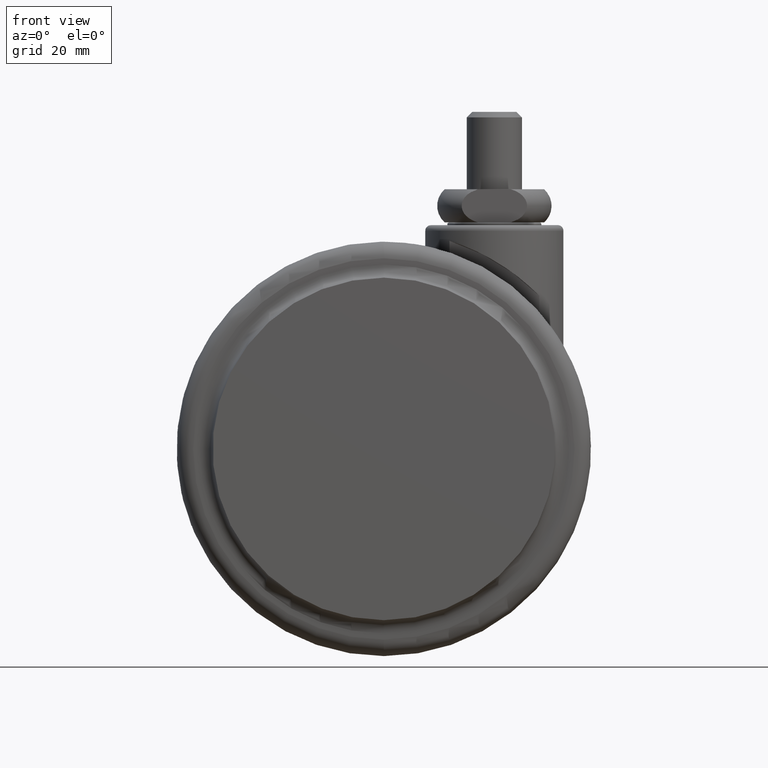
[diagram: clean part render]
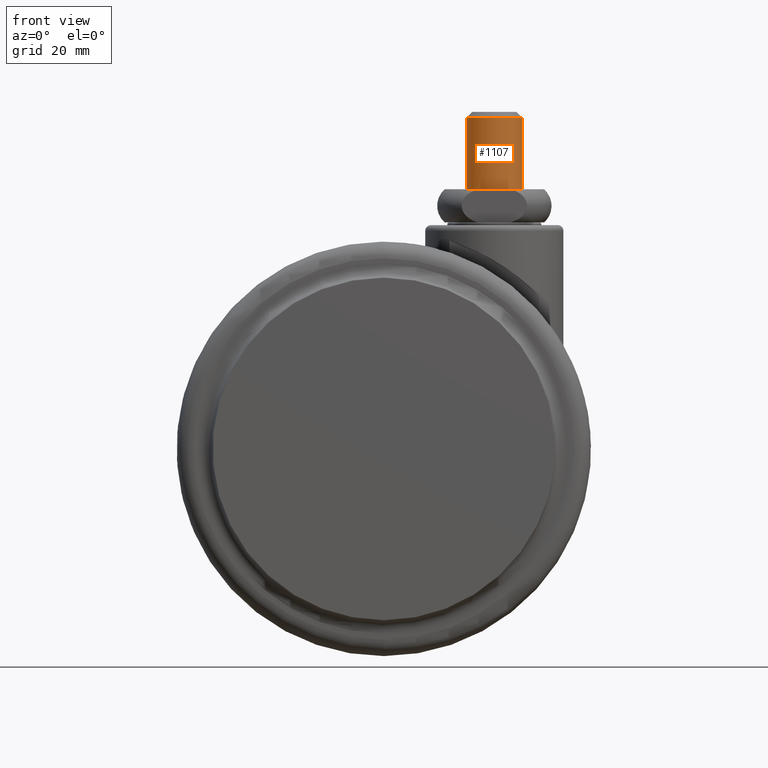
[diagram: same view with one face highlighted and labeled with its STEP entity id]
A machine part, front view. The second image highlights one B-rep face of the part: STEP entity #1107.
In plain terms, the highlighted cylindrical surface (edge-blend (fillet) strip) has radius 5 mm, axis along (0, 0, -1).
Its self-contained STEP definition (entity closure, byte-faithful):
#73 = CARTESIAN_POINT ( 'NONE',  ( 0.0000000000000000000, 2.842170943040399500E-014, 6.499999999999730000 ) ) ;
#163 = CIRCLE ( 'NONE', #1412, 5.000000000000000000 ) ;
#276 = VECTOR ( 'NONE', #3346, 1000.000000000000000 ) ;
#332 = EDGE_CURVE ( 'NONE', #2261, #1986, #3471, .T. ) ;
#380 = DIRECTION ( 'NONE',  ( 1.000000000000000000, 0.0000000000000000000, 0.0000000000000000000 ) ) ;
#468 = ORIENTED_EDGE ( 'NONE', *, *, #332, .T. ) ;
#479 = LINE ( 'NONE', #2107, #276 ) ;
#604 = DIRECTION ( 'NONE',  ( 0.0000000000000000000, 0.0000000000000000000, -1.000000000000000000 ) ) ;
#621 = EDGE_CURVE ( 'NONE', #1696, #2261, #163, .T. ) ;
#664 = VERTEX_POINT ( 'NONE', #1850 ) ;
#696 = DIRECTION ( 'NONE',  ( -0.0000000000000000000, -0.0000000000000000000, -1.000000000000000000 ) ) ;
#1107 = ADVANCED_FACE ( 'NONE', ( #1360 ), #1157, .T. ) ;
#1138 = AXIS2_PLACEMENT_3D ( 'NONE', #1711, #2634, #1737 ) ;
#1148 = ORIENTED_EDGE ( 'NONE', *, *, #2117, .F. ) ;
#1150 = AXIS2_PLACEMENT_3D ( 'NONE', #73, #2206, #380 ) ;
#1157 = CYLINDRICAL_SURFACE ( 'NONE', #1138, 5.000000000000000000 ) ;
#1198 = ORIENTED_EDGE ( 'NONE', *, *, #621, .T. ) ;
#1360 = FACE_OUTER_BOUND ( 'NONE', #1508, .T. ) ;
#1402 = ORIENTED_EDGE ( 'NONE', *, *, #1901, .T. ) ;
#1412 = AXIS2_PLACEMENT_3D ( 'NONE', #2826, #696, #2507 ) ;
#1508 = EDGE_LOOP ( 'NONE', ( #1148, #1198, #468, #1402 ) ) ;
#1564 = CARTESIAN_POINT ( 'NONE',  ( -5.000000000000000000, 2.842170943040399500E-014, 19.49999999999964800 ) ) ;
#1627 = CARTESIAN_POINT ( 'NONE',  ( -5.000000000000000000, 2.842170943040399500E-014, 6.499999999999730000 ) ) ;
#1696 = VERTEX_POINT ( 'NONE', #2792 ) ;
#1711 = CARTESIAN_POINT ( 'NONE',  ( 0.0000000000000000000, 2.842170943040399500E-014, 1006.500000000000000 ) ) ;
#1729 = VECTOR ( 'NONE', #604, 1000.000000000000000 ) ;
#1737 = DIRECTION ( 'NONE',  ( -1.000000000000000000, 0.0000000000000000000, 0.0000000000000000000 ) ) ;
#1850 = CARTESIAN_POINT ( 'NONE',  ( 5.000000000000000000, 2.903403282997767100E-014, 6.499999999999730000 ) ) ;
#1901 = EDGE_CURVE ( 'NONE', #1986, #664, #3345, .T. ) ;
#1986 = VERTEX_POINT ( 'NONE', #1627 ) ;
#2107 = CARTESIAN_POINT ( 'NONE',  ( 5.000000000000000000, 2.903403282997767100E-014, 1006.500000000000000 ) ) ;
#2117 = EDGE_CURVE ( 'NONE', #1696, #664, #479, .T. ) ;
#2206 = DIRECTION ( 'NONE',  ( 0.0000000000000000000, 0.0000000000000000000, 1.000000000000000000 ) ) ;
#2261 = VERTEX_POINT ( 'NONE', #1564 ) ;
#2417 = CARTESIAN_POINT ( 'NONE',  ( -5.000000000000000000, 2.842170943040399500E-014, 1006.500000000000000 ) ) ;
#2507 = DIRECTION ( 'NONE',  ( 1.000000000000000000, 0.0000000000000000000, 0.0000000000000000000 ) ) ;
#2634 = DIRECTION ( 'NONE',  ( 0.0000000000000000000, 0.0000000000000000000, -1.000000000000000000 ) ) ;
#2792 = CARTESIAN_POINT ( 'NONE',  ( 5.000000000000000000, 2.903403282997767100E-014, 19.49999999999964800 ) ) ;
#2826 = CARTESIAN_POINT ( 'NONE',  ( 0.0000000000000000000, 2.842170943040399500E-014, 19.49999999999964800 ) ) ;
#3345 = CIRCLE ( 'NONE', #1150, 5.000000000000000000 ) ;
#3346 = DIRECTION ( 'NONE',  ( 0.0000000000000000000, 0.0000000000000000000, -1.000000000000000000 ) ) ;
#3471 = LINE ( 'NONE', #2417, #1729 ) ;